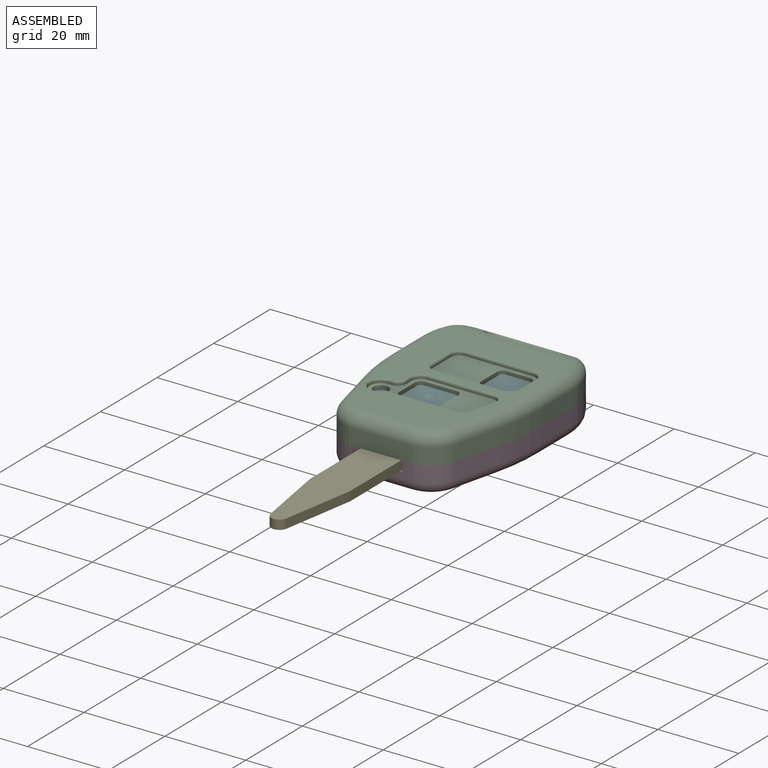
[diagram: assembled view]
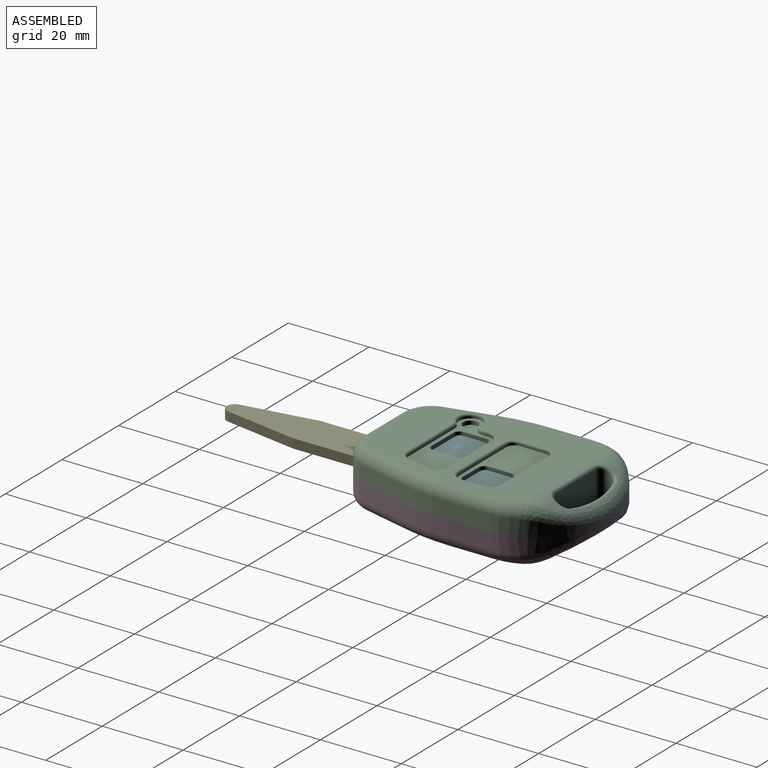
[diagram: assembled view, second angle]
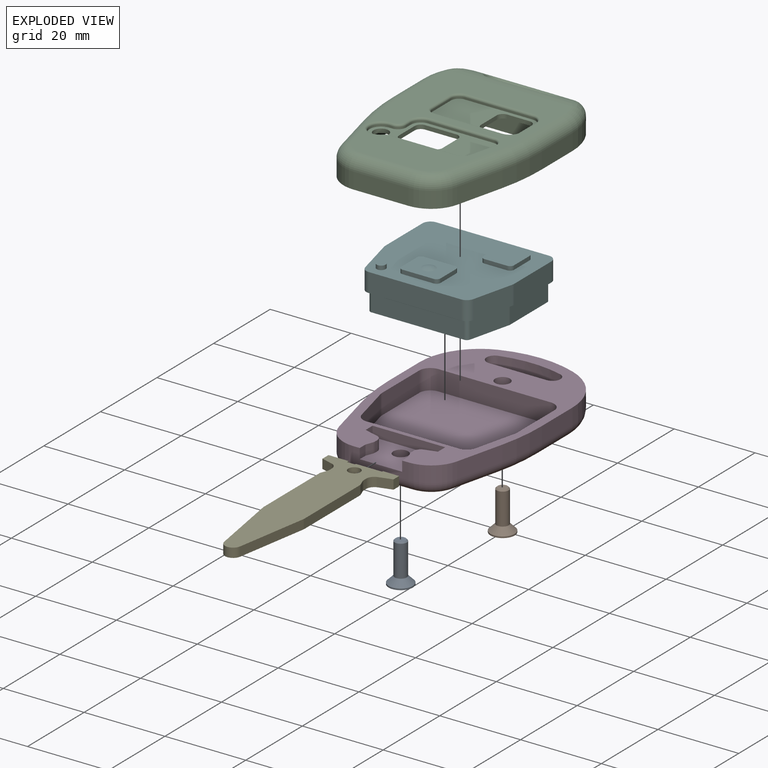
[diagram: exploded view]
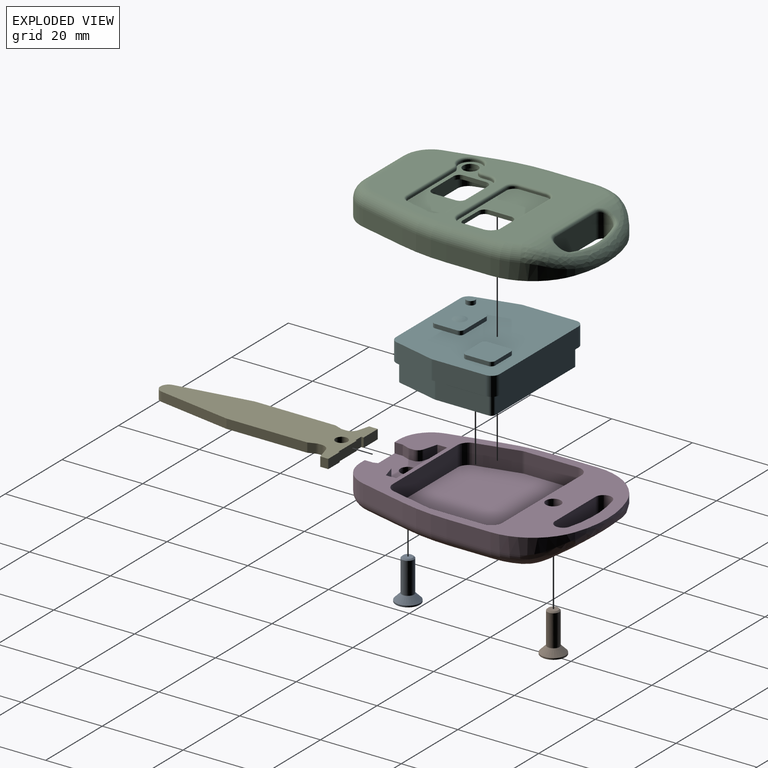
[diagram: exploded view, second angle]
ASSEMBLY  parts=6 mates=5
PART A: 21 faces, bbox 10x6x6 mm
  f0: cone r=1mm half-angle=45deg, axis (-1,0,0), area 2mm2, adj f1,f4,f5,f6,f7,f8,f9
  f1: plane 6x6mm, normal (-1,0,0), area 23.4mm2, adj f0,f2
  f2: cylinder r=3mm len=6mm, axis (1,0,0), area 6.8mm2, adj f1,f3
  f3: cone r=3mm half-angle=45deg, axis (-1,0,0), area 29.6mm2, adj f2,f17
  f4: plane 1.16x1.01mm, normal (0,0,-1), area 1mm2, adj f0,f5,f9,f12,f13
  f5: plane 1.01x1mm, normal (0,0.87,-0.5), area 1mm2, adj f0,f4,f6,f13,f14
  f6: plane 1.01x1mm, normal (0,0.87,0.5), area 1mm2, adj f0,f5,f7,f14,f15
  f7: plane 1.16x1.01mm, normal (0,0,1), area 1mm2, adj f0,f6,f8,f10,f15
  f8: plane 1.01x1mm, normal (0,-0.87,0.5), area 1mm2, adj f0,f7,f9,f10,f11
  f9: plane 1.01x1mm, normal (0,-0.87,-0.5), area 1mm2, adj f0,f4,f8,f11,f12
  f10: plane 0.87x0.5mm, normal (-1,0,0), area 0.1mm2, adj f7,f8,f16
  f11: plane 1x0.29mm, normal (-1,0,0), area 0.1mm2, adj f8,f9,f16
  f12: plane 0.87x0.5mm, normal (-1,0,0), area 0.1mm2, adj f4,f9,f16
  f13: plane 0.87x0.5mm, normal (-1,0,0), area 0.1mm2, adj f4,f5,f16
  f14: plane 1x0.29mm, normal (-1,0,0), area 0.1mm2, adj f5,f6,f16
  f15: plane 0.87x0.5mm, normal (-1,0,0), area 0.1mm2, adj f6,f7,f16
  f16: cone r=1mm half-angle=60deg, axis (-1,0,0), area 3.6mm2, adj f10,f11,f12,f13,f14,f15
  f17: torus R=1.6mm, axis (1,0,0), area 0.7mm2, adj f3,f20
  f18: plane 2.39x2.39mm, normal (1,0,0), area 4.5mm2, adj f19
  f19: cone r=1.5mm half-angle=45deg, axis (-1,0,0), area 3.7mm2, adj f18,f20
  f20: cylinder r=1.5mm len=7.79mm, axis (1,0,0), area 73.4mm2, adj f17,f19
PART B: same geometry as A
PART C: 118 faces, bbox 40.4x57.1x7.1 mm
  f0: plane 42.78x31.9mm, normal (0,0,1), area 723.4mm2, adj f70,f71,f72,f73,f74,f75,f76,f77
  f1: cylinder r=1.85mm len=3.7mm, axis (0,0,-1), area 11.6mm2, adj f47,f68
  f2: cylinder r=1.5mm len=1.5mm, axis (0,0,-1), area 2.4mm2, adj f3,f9,f47,f68
  f3: plane 7.7x1mm, normal (0,-1,0), area 7.7mm2, adj f2,f4,f47,f68
  f4: cylinder r=1.5mm len=1.5mm, axis (0,0,-1), area 2.4mm2, adj f3,f5,f47,f68
  f5: plane 5.5x1mm, normal (1,0,0), area 5.5mm2, adj f4,f6,f47,f68
  f6: cylinder r=1.5mm len=1.5mm, axis (0,0,-1), area 2.4mm2, adj f5,f7,f47,f68
  f7: plane 7.7x1mm, normal (0,1,0), area 7.7mm2, adj f6,f8,f47,f68
  f8: cylinder r=1.5mm len=1.5mm, axis (0,0,-1), area 2.4mm2, adj f7,f9,f47,f68
  f9: plane 5.5x1mm, normal (-1,0,0), area 5.5mm2, adj f2,f8,f47,f68
  f10: cylinder r=1.5mm len=1.5mm, axis (0,0,-1), area 2.4mm2, adj f11,f17,f47,f56
  f11: plane 5.5x1mm, normal (1,0,0), area 5.5mm2, adj f10,f12,f47,f56
  f12: cylinder r=1.5mm len=1.5mm, axis (0,0,-1), area 2.4mm2, adj f11,f13,f47,f56
  f13: plane 5.6x1mm, normal (0,1,0), area 5.6mm2, adj f12,f14,f47,f56
  f14: cylinder r=1.5mm len=1.5mm, axis (0,0,-1), area 2.4mm2, adj f13,f15,f47,f56
  f15: plane 5.5x1mm, normal (-1,0,0), area 5.5mm2, adj f14,f16,f47,f56
  f16: cylinder r=1.5mm len=1.5mm, axis (0,0,-1), area 2.4mm2, adj f15,f17,f47,f56
  f17: plane 5.6x1mm, normal (0,-1,0), area 5.6mm2, adj f10,f16,f47,f56
  f18: plane 56.4x37.9mm, normal (0,0,-1), area 853.4mm2, adj f19,f20,f21,f22,f23,f24,f25,f26
  f19: plane 13.67x4mm, normal (0,-1,0), area 54.7mm2, adj f18,f27,f28,f75
  f20: plane 11.79x4mm, normal (0.97,-0.24,0), area 48.6mm2, adj f18,f27,f33,f79
  f21: plane 10.88x4mm, normal (1,0,0), area 43.5mm2, adj f18,f29,f33,f83
  f22: cylinder r=26.44mm len=18.26mm, axis (0,0,-1), area 19mm2, adj f18,f29,f30,f82
  f23: plane 10.88x4mm, normal (-1,0,0), area 43.5mm2, adj f18,f30,f34,f74
  f24: cylinder r=27.94mm len=15.37mm, axis (0,0,-1), area 48.5mm2, adj f18,f31,f32,f87
  f25: plane 14.27x6.06mm, normal (0,1,0), area 86.4mm2, adj f18,f31,f32,f92
  f26: plane 11.79x4mm, normal (-0.97,-0.24,0), area 48.6mm2, adj f18,f28,f34,f71
  f27: cylinder r=8mm len=7.77mm, axis (0,0,1), area 42.6mm2, adj f18,f19,f20,f77
  f28: cylinder r=8mm len=7.77mm, axis (0,0,-1), area 42.6mm2, adj f18,f19,f26,f73
  f29: cylinder r=15mm len=14.08mm, axis (0,0,-1), area 60.1mm2, adj f18,f21,f22,f84,f85,f86
  f30: cylinder r=15mm len=14.08mm, axis (0,0,-1), area 60.1mm2, adj f18,f22,f23,f76,f78,f80
  f31: cylinder r=2mm len=6.06mm, axis (0,0,-1), area 28.8mm2, adj f18,f24,f25,f89,f91
  f32: cylinder r=2mm len=6.06mm, axis (0,0,-1), area 28.8mm2, adj f18,f24,f25,f88,f90
  f33: cylinder r=50mm len=11.94mm, axis (0,0,-1), area 48.2mm2, adj f18,f20,f21,f81
  f34: cylinder r=50mm len=11.94mm, axis (0,0,-1), area 48.2mm2, adj f18,f23,f26,f72
  f35: plane 13.16x5mm, normal (1,0,0), area 65.8mm2, adj f18,f36,f46,f47
  f36: cylinder r=2.75mm len=5mm, axis (0,0,-1), area 3.3mm2, adj f18,f35,f37,f47
  f37: plane 10.24x5mm, normal (0.97,0.24,0), area 52.7mm2, adj f18,f36,f38,f47
  f38: cylinder r=2.75mm len=5mm, axis (0,0,-1), area 18.3mm2, adj f18,f37,f39,f47
  f39: plane 22.86x5mm, normal (0,1,0), area 114.3mm2, adj f18,f38,f40,f47
  f40: cylinder r=2.75mm len=5mm, axis (0,0,-1), area 18.3mm2, adj f18,f39,f41,f47
  f41: plane 10.24x5mm, normal (-0.97,0.24,0), area 52.7mm2, adj f18,f40,f42,f47
  f42: cylinder r=2.75mm len=5mm, axis (0,0,-1), area 3.3mm2, adj f18,f41,f43,f47
  f43: plane 13.16x5mm, normal (-1,0,0), area 65.8mm2, adj f18,f42,f44,f47
  f44: cylinder r=2.75mm len=5mm, axis (0,0,-1), area 21.6mm2, adj f18,f43,f45,f47
  f45: plane 27.9x5mm, normal (0,-1,0), area 139.5mm2, adj f18,f44,f46,f47
  f46: cylinder r=2.75mm len=5mm, axis (0,0,-1), area 21.6mm2, adj f18,f35,f45,f47
  f47: plane 33.4x28.9mm, normal (0,0,-1), area 749.9mm2, adj f1,f2,f3,f4,f5,f6,f7,f8
  f48: cylinder r=2.5mm len=2.5mm, axis (0,0,1), area 2mm2, adj f49,f55,f56,f111
  f49: plane 5.5x0.5mm, normal (-1,0,0), area 2.7mm2, adj f48,f50,f56,f109
  f50: cylinder r=2.5mm len=2.5mm, axis (0,0,1), area 2mm2, adj f49,f51,f56,f107
  f51: plane 16.8x0.5mm, normal (0,-1,0), area 8.4mm2, adj f50,f52,f56,f106
  f52: cylinder r=2mm len=2mm, axis (0,0,1), area 1.6mm2, adj f51,f53,f56,f108
  f53: plane 6.5x0.5mm, normal (1,0,0), area 3.2mm2, adj f52,f54,f56,f110
  f54: cylinder r=2mm len=2mm, axis (0,0,1), area 1.6mm2, adj f53,f55,f56,f112
  f55: plane 16.8x0.5mm, normal (0,1,0), area 8.4mm2, adj f48,f54,f56,f113
  f56: plane 21.3x10.5mm, normal (0,0,1), area 148.1mm2, adj f10,f11,f12,f13,f14,f15,f16,f17
  f57: cylinder r=2.5mm len=2.5mm, axis (0,0,1), area 2mm2, adj f58,f67,f68,f97
  f58: plane 1.65x0.5mm, normal (1,0,0), area 0.8mm2, adj f57,f59,f68,f99
  f59: cylinder r=2mm len=2mm, axis (0,0,1), area 1.6mm2, adj f58,f60,f68,f101
  f60: plane 0.8x0.5mm, normal (0,-1,0), area 0.4mm2, adj f59,f61,f68,f103
  f61: cylinder r=2.85mm len=5.7mm, axis (0,0,1), area 5.6mm2, adj f60,f62,f68,f102,f104,f105
  f62: cylinder r=2mm len=1.38mm, axis (0,0,1), area 0.8mm2, adj f61,f63,f68,f100
  f63: plane 16.59x0.5mm, normal (0,1,0), area 8.3mm2, adj f62,f64,f68,f98
  f64: cylinder r=2mm len=1.94mm, axis (0,0,1), area 1.3mm2, adj f63,f65,f68,f96
  f65: plane 6.5x1.6mm, normal (-0.97,0.24,0), area 3.3mm2, adj f64,f66,f68,f94
  f66: cylinder r=2mm len=2.48mm, axis (0,0,1), area 1.8mm2, adj f65,f67,f68,f93
  f67: plane 16.25x0.5mm, normal (0,-1,0), area 8.1mm2, adj f57,f66,f68,f95
  f68: plane 26.4x11.85mm, normal (0,0,1), area 135.2mm2, adj f1,f2,f3,f4,f5,f6,f7,f8
  f69: plane 24.81x4.19mm, normal (0,0.49,0.87), area 12.6mm2, adj f70,f80,f82,f84,f87,f88,f89
  f70: cylinder r=10mm len=29.64mm, axis (-1,0,0), area 83.4mm2, adj f0,f69,f78,f86,f90,f91,f92
  f71: cylinder r=3mm len=12.51mm, axis (-0.24,0.97,0), area 56.7mm2, adj f0,f26,f72,f73,f104
  f72: torus R=47mm, axis (0,0,1), area 55.6mm2, adj f0,f34,f71,f74
  f73: torus R=5mm, axis (0,0,1), area 43.3mm2, adj f0,f28,f71,f75
  f74: cylinder r=3mm len=10.88mm, axis (0,1,0), area 51.3mm2, adj f0,f23,f72,f76
  f75: cylinder r=3mm len=13.67mm, axis (-1,0,0), area 64.4mm2, adj f0,f19,f73,f77
  f76: torus R=12mm, axis (0,0,1), area 28.7mm2, adj f0,f30,f74,f78
  f77: torus R=5mm, axis (0,0,1), area 43.3mm2, adj f0,f27,f75,f79
  f78: bspline ~8.25x6.17mm, area 24.3mm2, adj f30,f70,f76,f80
  f79: cylinder r=3mm len=12.51mm, axis (-0.24,-0.97,0), area 57.2mm2, adj f0,f20,f77,f81
  f80: bspline ~6.43x4.16mm, area 20.9mm2, adj f30,f69,f78,f82
  f81: torus R=47mm, axis (0,0,1), area 55.6mm2, adj f0,f33,f79,f83
  f82: bspline ~18.26x3.43mm, area 57.1mm2, adj f22,f69,f80,f84
  f83: cylinder r=3mm len=10.88mm, axis (0,-1,0), area 51.3mm2, adj f0,f21,f81,f85
  f84: bspline ~6.43x4.16mm, area 20.9mm2, adj f29,f69,f82,f86
  f85: torus R=12mm, axis (0,0,1), area 28.7mm2, adj f0,f29,f83,f86
  f86: bspline ~8.88x6.78mm, area 24.3mm2, adj f29,f70,f84,f85
  f87: bspline ~15.78x2.19mm, area 24.5mm2, adj f24,f69,f88,f89
  f88: bspline ~3.07x2.23mm, area 4.6mm2, adj f32,f69,f87,f90
  f89: bspline ~3.07x2.23mm, area 4.6mm2, adj f31,f69,f87,f91
  f90: bspline ~3.74x3.35mm, area 4mm2, adj f32,f70,f88,f92
  f91: bspline ~3.74x3.35mm, area 4mm2, adj f31,f70,f89,f92
  f92: cylinder r=0.75mm len=14.27mm, axis (-1,0,0), area 14.6mm2, adj f25,f70,f90,f91
  f93: torus R=2.5mm, axis (0,0,1), area 3.1mm2, adj f0,f66,f94,f95
  f94: cylinder r=0.5mm len=6.62mm, axis (-0.24,-0.97,0), area 5.3mm2, adj f0,f65,f93,f96
  f95: cylinder r=0.5mm len=16.25mm, axis (1,0,0), area 12.8mm2, adj f0,f67,f93,f97
  f96: torus R=2.5mm, axis (0,0,1), area 2.3mm2, adj f0,f64,f94,f98
  f97: torus R=3mm, axis (0,0,1), area 3.3mm2, adj f0,f57,f95,f99
  f98: cylinder r=0.5mm len=16.59mm, axis (-1,0,0), area 13mm2, adj f0,f63,f96,f100
  f99: cylinder r=0.5mm len=1.65mm, axis (0,1,0), area 1.3mm2, adj f0,f58,f97,f101
  f100: torus R=1.5mm, axis (0,0,1), area 1.1mm2, adj f0,f62,f98,f102
  f101: torus R=1.5mm, axis (0,0,1), area 2.2mm2, adj f0,f59,f99,f103
  f102: torus R=3.35mm, axis (0,0,1), area 4mm2, adj f0,f61,f100,f104
  f103: cylinder r=0.5mm len=0.8mm, axis (1,0,0), area 0.6mm2, adj f0,f60,f101,f105
  f104: bspline ~3.66x1.51mm, area 2mm2, adj f61,f71,f102,f105
  f105: torus R=3.35mm, axis (0,0,1), area 3.4mm2, adj f0,f61,f103,f104
  f106: cylinder r=0.5mm len=16.8mm, axis (1,0,0), area 13.2mm2, adj f0,f51,f107,f108
  f107: torus R=3mm, axis (0,0,1), area 3.3mm2, adj f0,f50,f106,f109
  f108: torus R=2.5mm, axis (0,0,1), area 2.7mm2, adj f0,f52,f106,f110
  f109: cylinder r=0.5mm len=5.5mm, axis (0,-1,0), area 4.3mm2, adj f0,f49,f107,f111
  f110: cylinder r=0.5mm len=6.5mm, axis (0,1,0), area 5.1mm2, adj f0,f53,f108,f112
  f111: torus R=3mm, axis (0,0,1), area 3.3mm2, adj f0,f48,f109,f113
  f112: torus R=2.5mm, axis (0,0,1), area 2.7mm2, adj f0,f54,f110,f113
  f113: cylinder r=0.5mm len=16.8mm, axis (-1,0,0), area 13.2mm2, adj f0,f55,f111,f112
  f114: cylinder r=1.25mm len=6mm, axis (0,0,-1), area 47.1mm2, adj f18,f115
  f115: plane 2.5x2.5mm, normal (0,0,-1), area 4.9mm2, adj f114
  f116: cylinder r=1.25mm len=6mm, axis (0,0,-1), area 47.1mm2, adj f18,f117
  f117: plane 2.5x2.5mm, normal (0,0,-1), area 4.9mm2, adj f116
PART D: 76 faces, bbox 40.4x57.1x7.1 mm
  f0: cylinder r=26.44mm len=18.26mm, axis (0,0,1), area 19mm2, adj f2,f3,f6,f45
  f1: cylinder r=27.94mm len=15.37mm, axis (0,0,1), area 54.9mm2, adj f4,f5,f6,f49
  f2: cylinder r=15mm len=14.08mm, axis (0,0,1), area 60mm2, adj f0,f6,f9,f46,f47,f48
  f3: cylinder r=15mm len=14.08mm, axis (0,0,1), area 60mm2, adj f0,f6,f10,f39,f41,f43
  f4: cylinder r=2mm len=6.06mm, axis (0,0,1), area 28.5mm2, adj f1,f6,f11,f50,f52
  f5: cylinder r=2mm len=6.06mm, axis (0,0,1), area 28.5mm2, adj f1,f6,f11,f51,f53
  f6: plane 56.4x37.9mm, normal (0,0,1), area 726.6mm2, adj f0,f1,f2,f3,f4,f5,f7,f8
  f7: plane 13.67x4mm, normal (0,-1,0), area 28.4mm2, adj f6,f14,f15,f36,f62,f63,f70
  f8: plane 11.79x4mm, normal (0.97,-0.24,0), area 48.6mm2, adj f6,f14,f16,f40
  f9: plane 10.88x4mm, normal (1,0,0), area 43.5mm2, adj f2,f6,f16,f44
  f10: plane 10.88x4mm, normal (-1,0,0), area 43.5mm2, adj f3,f6,f17,f37
  f11: plane 14.27x6.06mm, normal (0,1,0), area 86.4mm2, adj f4,f5,f6,f54
  f12: plane 11.79x4mm, normal (-0.97,-0.24,0), area 48.6mm2, adj f6,f15,f17,f33
  f13: plane 42.78x31.9mm, normal (0,0,-1), area 1173.6mm2, adj f32,f33,f34,f35,f36,f37,f38,f39
  f14: cylinder r=8mm len=7.77mm, axis (0,0,-1), area 42.6mm2, adj f6,f7,f8,f38
  f15: cylinder r=8mm len=7.77mm, axis (0,0,1), area 42.6mm2, adj f6,f7,f12,f34
  f16: cylinder r=50mm len=11.94mm, axis (0,0,1), area 48.2mm2, adj f6,f8,f9,f42
  f17: cylinder r=50mm len=11.94mm, axis (0,0,1), area 48.2mm2, adj f6,f10,f12,f35
  f18: plane 13.16x5mm, normal (1,0,0), area 65.8mm2, adj f6,f19,f29,f30
  f19: cylinder r=2.75mm len=5mm, axis (0,0,-1), area 3.3mm2, adj f6,f18,f20,f30
  f20: plane 10.24x5mm, normal (0.97,0.24,0), area 52.7mm2, adj f6,f19,f21,f30
  f21: cylinder r=2.75mm len=5mm, axis (0,0,-1), area 18.3mm2, adj f6,f20,f22,f30
  f22: plane 22.86x5mm, normal (0,1,0), area 114.3mm2, adj f6,f21,f23,f30
  f23: cylinder r=2.75mm len=5mm, axis (0,0,-1), area 18.3mm2, adj f6,f22,f24,f30
  f24: plane 10.24x5mm, normal (-0.97,0.24,0), area 52.7mm2, adj f6,f23,f25,f30
  f25: cylinder r=2.75mm len=5mm, axis (0,0,-1), area 3.3mm2, adj f6,f24,f26,f30
  f26: plane 13.16x5mm, normal (-1,0,0), area 65.8mm2, adj f6,f25,f27,f30
  f27: cylinder r=2.75mm len=5mm, axis (0,0,-1), area 21.6mm2, adj f6,f26,f28,f30
  f28: plane 27.9x5mm, normal (0,-1,0), area 139.5mm2, adj f6,f27,f29,f30
  f29: cylinder r=2.75mm len=5mm, axis (0,0,-1), area 21.6mm2, adj f6,f18,f28,f30
  f30: plane 33.4x28.9mm, normal (0,0,1), area 920.8mm2, adj f18,f19,f20,f21,f22,f23,f24,f25
  f31: plane 24.81x4.19mm, normal (0,0.49,-0.87), area 12.6mm2, adj f32,f43,f45,f47,f49,f50,f51
  f32: cylinder r=10mm len=29.64mm, axis (-1,0,0), area 80.4mm2, adj f13,f31,f41,f48,f52,f53,f54,f74
  f33: cylinder r=3mm len=12.51mm, axis (-0.24,0.97,0), area 57.2mm2, adj f12,f13,f34,f35
  f34: torus R=5mm, axis (0,0,1), area 43.3mm2, adj f13,f15,f33,f36
  f35: torus R=47mm, axis (0,0,1), area 55.6mm2, adj f13,f17,f33,f37
  f36: cylinder r=3mm len=13.67mm, axis (-1,0,0), area 64.4mm2, adj f7,f13,f34,f38
  f37: cylinder r=3mm len=10.88mm, axis (0,1,0), area 51.3mm2, adj f10,f13,f35,f39
  f38: torus R=5mm, axis (0,0,1), area 43.3mm2, adj f13,f14,f36,f40
  f39: torus R=12mm, axis (0,0,1), area 28.7mm2, adj f3,f13,f37,f41
  f40: cylinder r=3mm len=12.51mm, axis (-0.24,-0.97,0), area 57.2mm2, adj f8,f13,f38,f42
  f41: bspline ~8.25x6.17mm, area 24.3mm2, adj f3,f32,f39,f43
  f42: torus R=47mm, axis (0,0,1), area 55.6mm2, adj f13,f16,f40,f44
  f43: bspline ~6.43x4.16mm, area 20.9mm2, adj f3,f31,f41,f45
  f44: cylinder r=3mm len=10.88mm, axis (0,-1,0), area 51.3mm2, adj f9,f13,f42,f46
  f45: bspline ~18.26x3.43mm, area 57.1mm2, adj f0,f31,f43,f47
  f46: torus R=12mm, axis (0,0,1), area 28.7mm2, adj f2,f13,f44,f48
  f47: bspline ~6.43x4.16mm, area 20.9mm2, adj f2,f31,f45,f48
  f48: bspline ~8.25x6.17mm, area 24.3mm2, adj f2,f32,f46,f47
  f49: bspline ~15.78x2.19mm, area 24.5mm2, adj f1,f31,f50,f51
  f50: bspline ~3.07x2.23mm, area 4.6mm2, adj f4,f31,f49,f52
  f51: bspline ~3.07x2.23mm, area 4.6mm2, adj f5,f31,f49,f53
  f52: bspline ~3.74x3.35mm, area 4mm2, adj f4,f32,f50,f54
  f53: bspline ~3.74x3.35mm, area 4mm2, adj f5,f32,f51,f54
  f54: cylinder r=0.75mm len=14.27mm, axis (-1,0,0), area 14.6mm2, adj f11,f32,f52,f53
  f55: plane 18x2.5mm, normal (0,-1,0), area 45mm2, adj f6,f56,f69,f70
  f56: plane 2.5x2.44mm, normal (1,0,0), area 6.1mm2, adj f6,f55,f57,f70
  f57: plane 3.48x2.5mm, normal (0.27,0.96,0), area 9mm2, adj f6,f56,f58,f70
  f58: cylinder r=1.75mm len=2.5mm, axis (0,0,1), area 5.7mm2, adj f6,f57,f59,f70
  f59: plane 2.5x0.78mm, normal (1,0,0), area 1.9mm2, adj f6,f58,f60,f70
  f60: cylinder r=1.75mm len=2.5mm, axis (0,0,1), area 1.6mm2, adj f6,f59,f61,f70
  f61: plane 2.5x1.7mm, normal (0.94,-0.35,0), area 4.5mm2, adj f6,f60,f62,f70
  f62: plane 2.5x2.05mm, normal (1,0,0), area 5.1mm2, adj f6,f7,f61,f70
  f63: plane 2.5x2.05mm, normal (-1,0,0), area 5.1mm2, adj f6,f7,f64,f70
  f64: plane 2.5x1.7mm, normal (-0.94,-0.35,0), area 4.5mm2, adj f6,f63,f65,f70
  f65: cylinder r=1.75mm len=2.5mm, axis (0,0,1), area 1.6mm2, adj f6,f64,f66,f70
  f66: plane 2.5x0.78mm, normal (-1,0,0), area 1.9mm2, adj f6,f65,f67,f70
  f67: cylinder r=1.75mm len=2.5mm, axis (0,0,1), area 5.7mm2, adj f6,f66,f68,f70
  f68: plane 2.98x2.5mm, normal (-0.27,0.96,0), area 7.7mm2, adj f6,f67,f69,f70
  f69: plane 2.58x2.5mm, normal (-1,0,0), area 6.5mm2, adj f6,f55,f68,f70
  f70: plane 18x10.25mm, normal (0,0,1), area 115.1mm2, adj f7,f55,f56,f57,f58,f59,f60,f61
  f71: cylinder r=1.85mm len=3.7mm, axis (0,0,1), area 34.9mm2, adj f70,f75
  f72: cylinder r=1.85mm len=5.5mm, axis (0,0,1), area 63.9mm2, adj f6,f73,f74
  f73: cone r=3.35mm half-angle=45deg, axis (0,0,-1), area 28.1mm2, adj f13,f72,f74
  f74: bspline ~3.74x1.92mm, area 6.7mm2, adj f32,f72,f73
  f75: cone r=3.35mm half-angle=45deg, axis (0,0,-1), area 34.7mm2, adj f13,f71
PART E: 27 faces, bbox 17.5x47.8x2.3 mm
  f0: plane 18.16x3.03mm, normal (0.99,-0.16,0), area 42.4mm2, adj f1,f20,f21,f26
  f1: plane 20x2.3mm, normal (1,0,0), area 46mm2, adj f0,f2,f20,f21
  f2: plane 2.3x1.66mm, normal (0.94,0.35,0), area 4.1mm2, adj f1,f20,f21,f22
  f3: plane 2.3x0.78mm, normal (1,0,0), area 1.8mm2, adj f20,f21,f22,f23
  f4: plane 2.8x2.3mm, normal (0.27,-0.96,0), area 6.7mm2, adj f5,f20,f21,f23
  f5: plane 2.3x2.14mm, normal (1,0,0), area 4.9mm2, adj f4,f6,f20,f21
  f6: plane 5x2.3mm, normal (0,1,0), area 11.5mm2, adj f5,f7,f20,f21
  f7: plane 2.3x0.6mm, normal (-1,0,0), area 1.4mm2, adj f6,f8,f20,f21
  f8: plane 2.3x2mm, normal (0,1,0), area 4.6mm2, adj f7,f9,f20,f21
  f9: plane 2.3x0.3mm, normal (1,0,0), area 0.7mm2, adj f8,f10,f20,f21
  f10: plane 6.5x2.3mm, normal (0,1,0), area 15mm2, adj f9,f11,f20,f21
  f11: plane 2.3x0.3mm, normal (1,0,0), area 0.7mm2, adj f10,f12,f20,f21
  f12: plane 4x2.3mm, normal (0,1,0), area 9.2mm2, adj f11,f13,f20,f21
  f13: plane 2.3x2mm, normal (-1,0,0), area 4.6mm2, adj f12,f14,f20,f21
  f14: plane 3.3x2.3mm, normal (-0.27,-0.96,0), area 7.9mm2, adj f13,f20,f21,f24
  f15: plane 2.3x0.78mm, normal (-1,0,0), area 1.8mm2, adj f20,f21,f24,f25
  f16: plane 2.3x1.66mm, normal (-0.94,0.35,0), area 4.1mm2, adj f17,f20,f21,f25
  f17: plane 20x2.3mm, normal (-1,0,0), area 46mm2, adj f16,f19,f20,f21
  f18: cylinder r=1.5mm len=3mm, axis (0,0,1), area 21.7mm2, adj f20,f21
  f19: plane 18.16x3.03mm, normal (-0.99,-0.16,0), area 42.4mm2, adj f17,f20,f21,f26
  f20: plane 47.83x17.5mm, normal (0,0,-1), area 416.2mm2, adj f0,f1,f2,f3,f4,f5,f6,f7
  f21: plane 47.83x17.5mm, normal (0,0,1), area 416.2mm2, adj f0,f1,f2,f3,f4,f5,f6,f7
  f22: cylinder r=2mm len=2.3mm, axis (0,0,-1), area 1.7mm2, adj f2,f3,f20,f21
  f23: cylinder r=2mm len=2.3mm, axis (0,0,-1), area 6mm2, adj f3,f4,f20,f21
  f24: cylinder r=2mm len=2.3mm, axis (0,0,-1), area 6mm2, adj f14,f15,f20,f21
  f25: cylinder r=2mm len=2.3mm, axis (0,0,-1), area 1.7mm2, adj f15,f16,f20,f21
  f26: cylinder r=2mm len=3.95mm, axis (0,0,1), area 12.9mm2, adj f0,f19,f20,f21
PART F: 49 faces, bbox 31.9x27.4x10.7 mm
  f0: plane 31.9x27.4mm, normal (0,0,1), area 704.2mm2, adj f1,f2,f3,f4,f5,f6,f7,f8
  f1: plane 22.86x4.7mm, normal (0,-1,0), area 107.5mm2, adj f0,f19,f24,f35
  f2: plane 10.24x4.7mm, normal (0.97,-0.24,0), area 49.6mm2, adj f0,f19,f20,f35
  f3: plane 13.16x4.7mm, normal (1,0,0), area 61.8mm2, adj f0,f20,f21,f35
  f4: plane 27.9x4.7mm, normal (0,1,0), area 131.1mm2, adj f0,f21,f22,f35
  f5: plane 13.16x4.7mm, normal (-1,0,0), area 61.8mm2, adj f0,f22,f23,f35
  f6: plane 10.24x4.7mm, normal (-0.97,-0.24,0), area 49.6mm2, adj f0,f23,f24,f35
  f7: plane 5.6x1mm, normal (0,1,0), area 5.6mm2, adj f0,f11,f29,f32
  f8: plane 5.5x1mm, normal (-1,0,0), area 5.5mm2, adj f0,f11,f31,f32
  f9: plane 5.6x1mm, normal (0,-1,0), area 5.6mm2, adj f0,f11,f30,f31
  f10: plane 5.5x1mm, normal (1,0,0), area 5.5mm2, adj f0,f11,f29,f30
  f11: plane 7.6x7.5mm, normal (0,0,1), area 56.1mm2, adj f7,f8,f9,f10,f29,f30,f31,f32
  f12: plane 7.7x1mm, normal (0,-1,0), area 7.7mm2, adj f0,f16,f25,f28
  f13: plane 5.5x1mm, normal (1,0,0), area 5.5mm2, adj f0,f16,f25,f26
  f14: plane 7.7x1mm, normal (0,1,0), area 7.7mm2, adj f0,f16,f26,f27
  f15: plane 5.5x1mm, normal (-1,0,0), area 5.5mm2, adj f0,f16,f27,f28
  f16: plane 9.7x7.5mm, normal (0,0,1), area 63.3mm2, adj f12,f13,f14,f15,f25,f26,f27,f28
  f17: cylinder r=1.1mm len=2.2mm, axis (0,0,-1), area 6.9mm2, adj f0,f18
  f18: plane 2.2x2.2mm, normal (0,0,1), area 3.8mm2, adj f17
  f19: cylinder r=2mm len=4.7mm, axis (0,0,1), area 12.5mm2, adj f0,f1,f2,f35
  f20: cylinder r=2mm len=4.7mm, axis (0,0,-1), area 2.3mm2, adj f0,f2,f3,f35
  f21: cylinder r=2mm len=4.7mm, axis (0,0,-1), area 14.8mm2, adj f0,f3,f4,f35
  f22: cylinder r=2mm len=4.7mm, axis (0,0,1), area 14.8mm2, adj f0,f4,f5,f35
  f23: cylinder r=2mm len=4.7mm, axis (0,0,-1), area 2.3mm2, adj f0,f5,f6,f35
  f24: cylinder r=2mm len=4.7mm, axis (0,0,-1), area 12.5mm2, adj f0,f1,f6,f35
  f25: cylinder r=1mm len=1mm, axis (0,0,1), area 1.6mm2, adj f0,f12,f13,f16
  f26: cylinder r=1mm len=1mm, axis (0,0,-1), area 1.6mm2, adj f0,f13,f14,f16
  f27: cylinder r=1mm len=1mm, axis (0,0,1), area 1.6mm2, adj f0,f14,f15,f16
  f28: cylinder r=1mm len=1mm, axis (0,0,-1), area 1.6mm2, adj f0,f12,f15,f16
  f29: cylinder r=1mm len=1mm, axis (0,0,-1), area 1.6mm2, adj f0,f7,f10,f11
  f30: cylinder r=1mm len=1mm, axis (0,0,1), area 1.6mm2, adj f0,f9,f10,f11
  f31: cylinder r=1mm len=1mm, axis (0,0,-1), area 1.6mm2, adj f0,f8,f9,f11
  f32: cylinder r=1mm len=1mm, axis (0,0,1), area 1.6mm2, adj f0,f7,f8,f11
  f33: plane 0.07x0.07mm, normal (0,0,1), area 0mm2, adj f34
  f34: torus R=0.03mm, axis (0,0,-1), area 8.8mm2, adj f16,f33
  f35: plane 31.9x27.4mm, normal (0,0,-1), area 107.6mm2, adj f1,f2,f3,f4,f5,f6,f19,f20
  f36: plane 10.24x4.7mm, normal (-0.97,-0.24,0), area 49.6mm2, adj f35,f37,f46,f48
  f37: cylinder r=1mm len=4.7mm, axis (0,0,-1), area 6.2mm2, adj f35,f36,f38,f48
  f38: plane 22.86x4.7mm, normal (0,-1,0), area 107.5mm2, adj f35,f37,f39,f48
  f39: cylinder r=1mm len=4.7mm, axis (0,0,-1), area 6.2mm2, adj f35,f38,f40,f48
  f40: plane 10.24x4.7mm, normal (0.97,-0.24,0), area 49.6mm2, adj f35,f39,f41,f48
  f41: cylinder r=1mm len=4.7mm, axis (0,0,-1), area 1.1mm2, adj f35,f40,f42,f48
  f42: plane 13.16x4.7mm, normal (1,0,0), area 61.8mm2, adj f35,f41,f43,f48
  f43: cylinder r=1mm len=4.7mm, axis (0,0,-1), area 7.4mm2, adj f35,f42,f44,f48
  f44: plane 27.9x4.7mm, normal (0,1,0), area 131.1mm2, adj f35,f43,f45,f48
  f45: cylinder r=1mm len=4.7mm, axis (0,0,-1), area 7.4mm2, adj f35,f44,f47,f48
  f46: cylinder r=1mm len=4.7mm, axis (0,0,-1), area 1.1mm2, adj f35,f36,f47,f48
  f47: plane 13.16x4.7mm, normal (-1,0,0), area 61.8mm2, adj f35,f45,f46,f48
  f48: plane 29.9x25.4mm, normal (0,0,-1), area 728.4mm2, adj f36,f37,f38,f39,f40,f41,f42,f43
PLACE A rot(axis=(0.58,-0.58,0.58),120deg) t=(1.75,-19.14,-6.75)mm
PLACE B rot(axis=(0.58,-0.58,0.58),120deg) t=(1.75,16.86,-6.75)mm
PLACE C t=(1.75,-19.14,0.33)mm
PLACE D t=(1.75,-19.14,0.33)mm fixed
PLACE E rot(axis=(0,1,0),180deg) t=(1.75,-19.14,-1.97)mm
PLACE F t=(1.75,-19.1,0.03)mm
MATE fastened B.f3 <-> D.f72  axis (0,0,-1) through (1.75,16.86,-4.92)mm
MATE fastened C.f116 <-> E.f18  axis (0,0,-1) through (1.75,-19.14,0.33)mm
MATE fastened F.f48 <-> D.f30  axis (0,0,-1) through (1.75,-0.02,-4.67)mm
MATE fastened A.f3 <-> D.f71  axis (0,0,-1) through (1.75,-19.14,-4.92)mm
MATE fastened D.f6 <-> C.f18  axis (0,0,1) through (16.35,-20.05,0.33)mm
